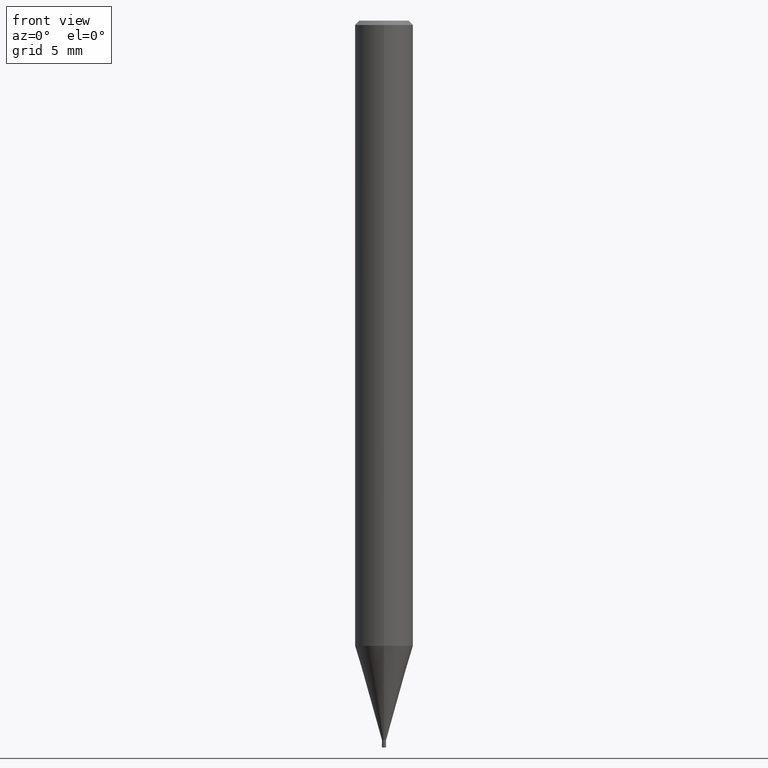
[diagram: clean part render]
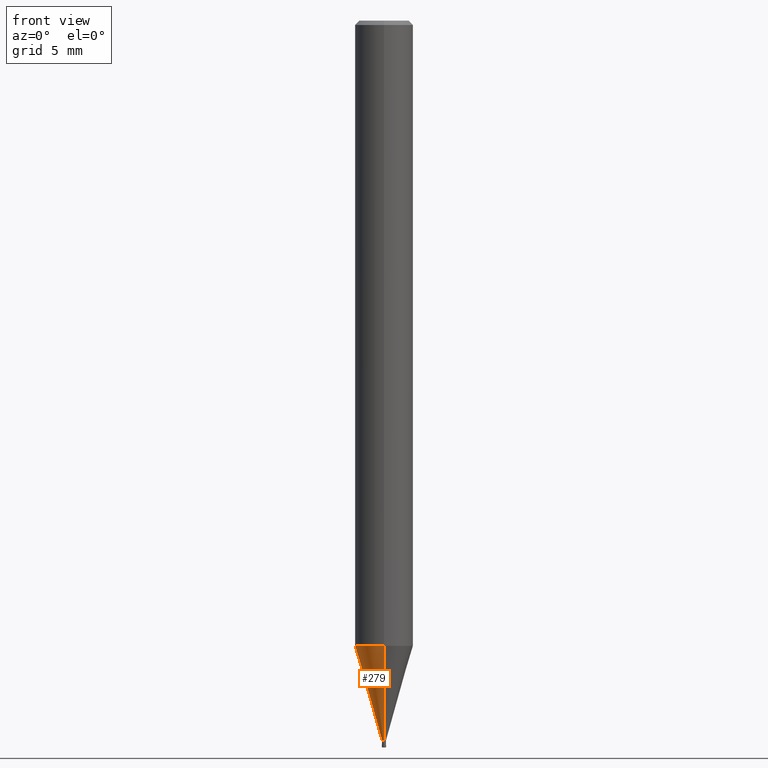
[diagram: same view with one face highlighted and labeled with its STEP entity id]
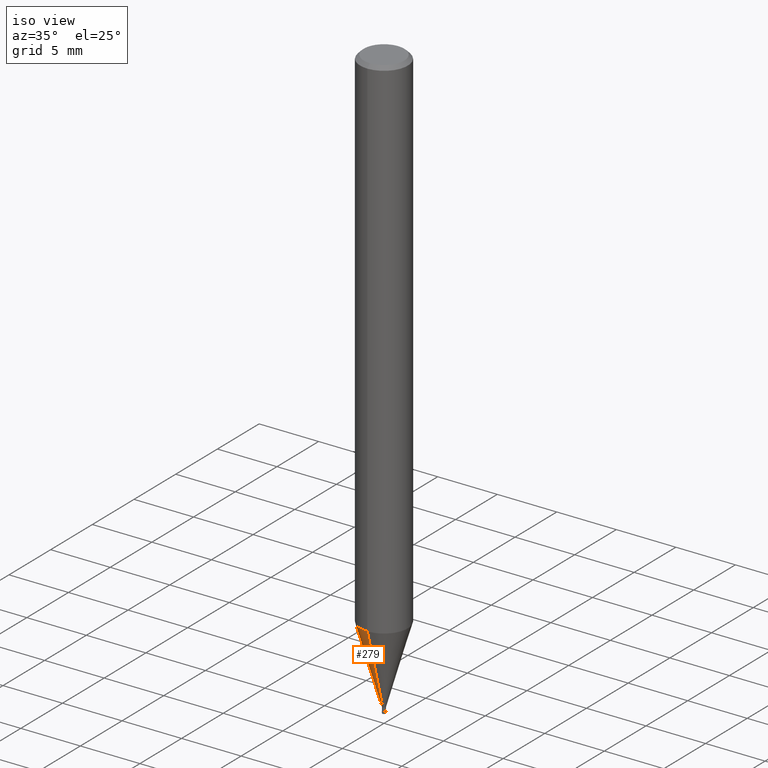
[diagram: same view with one face highlighted and labeled with its STEP entity id]
A machine part, front view. The second image highlights one B-rep face of the part: STEP entity #279.
A second angle (iso view) of the same face is appended — the face is thin or edge-on in the first view.
In plain terms, the highlighted conical surface has half-angle 15.999 deg.
Its self-contained STEP definition (entity closure, byte-faithful):
#143=EDGE_CURVE('',#223,#183,#380,.T.);
#151=EDGE_CURVE('',#355,#333,#390,.T.);
#167=EDGE_CURVE('',#223,#355,#408,.T.);
#183=VERTEX_POINT('',#426);
#197=EDGE_CURVE('',#333,#183,#443,.T.);
#223=VERTEX_POINT('',#469);
#279=ADVANCED_FACE('',(#534),#535,.T.);
#333=VERTEX_POINT('',#596);
#355=VERTEX_POINT('',#620);
#380=CIRCLE('',#638,0.13995);
#390=CIRCLE('',#650,1.99995);
#408=LINE('',#673,#674);
#426=CARTESIAN_POINT('',(0.0,0.13995,-49.49));
#443=LINE('',#713,#714);
#469=CARTESIAN_POINT('',(1.71383659217442E-017,-0.13995,-49.49));
#534=FACE_OUTER_BOUND('',#829,.T.);
#535=CONICAL_SURFACE('',#830,1.06995,0.27923596926092);
#596=CARTESIAN_POINT('',(0.0,1.99995,-43.003));
#620=CARTESIAN_POINT('',(2.44915147732706E-016,-1.99995,-43.003));
#638=AXIS2_PLACEMENT_3D('',#953,#954,#955);
#650=AXIS2_PLACEMENT_3D('',#975,#976,#977);
#673=CARTESIAN_POINT('',(1.31026756827225E-016,-1.06995,-46.2465));
#674=VECTOR('',#999,1.0);
#713=CARTESIAN_POINT('',(-1.31026756827225E-016,1.06995,-46.2465));
#714=VECTOR('',#1036,1.0);
#829=EDGE_LOOP('',(#1153,#1154,#1155,#1156));
#830=AXIS2_PLACEMENT_3D('',#1157,#1158,#1159);
#953=CARTESIAN_POINT('',(0.0,0.0,-49.49));
#954=DIRECTION('',(0.0,0.0,-1.0));
#955=DIRECTION('',(0.0,1.0,0.0));
#975=CARTESIAN_POINT('',(0.0,0.0,-43.003));
#976=DIRECTION('',(0.0,0.0,-1.0));
#977=DIRECTION('',(0.0,1.0,0.0));
#999=DIRECTION('',(3.37527585527933E-017,-0.275621292078393,0.961266301995986));
#1036=DIRECTION('',(3.37527585527933E-017,-0.275621292078393,-0.961266301995986));
#1153=ORIENTED_EDGE('',*,*,#197,.T.);
#1154=ORIENTED_EDGE('',*,*,#143,.F.);
#1155=ORIENTED_EDGE('',*,*,#167,.T.);
#1156=ORIENTED_EDGE('',*,*,#151,.T.);
#1157=CARTESIAN_POINT('',(0.0,0.0,-46.2465));
#1158=DIRECTION('',(-0.0,-0.0,1.0));
#1159=DIRECTION('',(0.0,1.0,0.0));